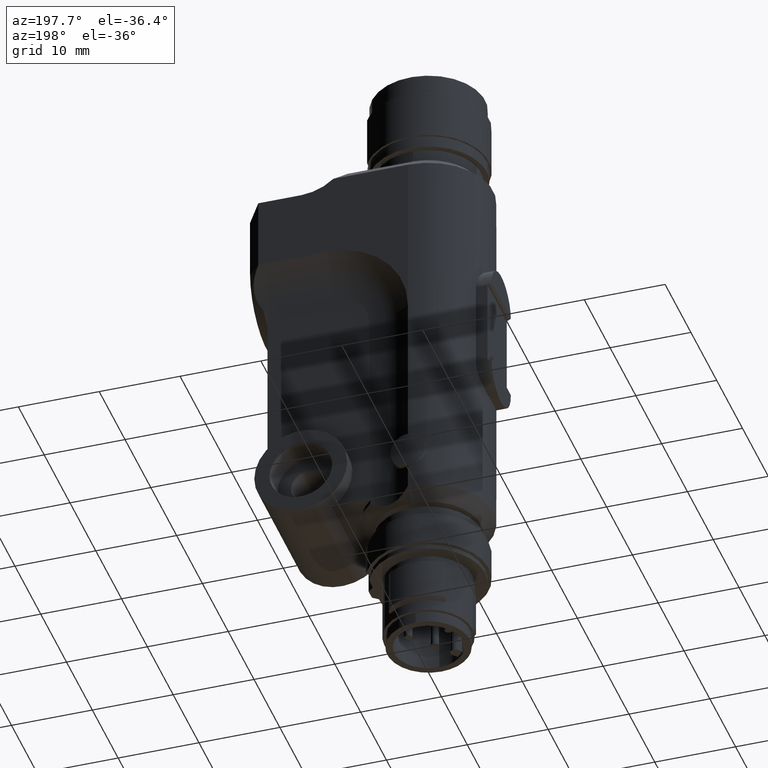
[diagram: clean part render]
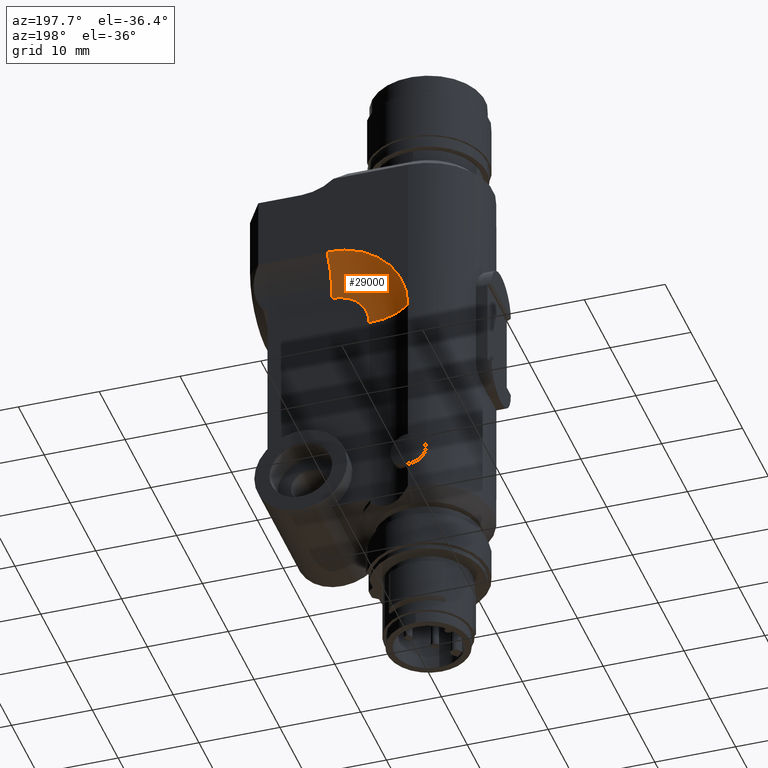
[diagram: same view with one face highlighted and labeled with its STEP entity id]
A machine part, auxiliary view. The second image highlights one B-rep face of the part: STEP entity #29000.
In plain terms, the highlighted toroidal blend (fillet) surface has major radius 4.7085 mm and minor (blend) radius 8 mm.
Its self-contained STEP definition (entity closure, byte-faithful):
#9360=CARTESIAN_POINT('',(-8.,4.56777472988637E-15,28.0000000000002));
#9370=VERTEX_POINT('',#9360);
#15000=CARTESIAN_POINT('',(-6.001,5.41798977562688,28.));
#15010=VERTEX_POINT('',#15000);
#15040=CARTESIAN_POINT('',(-14.,5.2915026221292,28.));
#15050=DIRECTION('',(2.52970265222012E-16,6.72936758894445E-17,1.));
#15060=DIRECTION('',(-4.76014766725616E-31,-1.,6.72936758894445E-17));
#15070=AXIS2_PLACEMENT_3D('',#15040,#15050,#15060);
#15080=CIRCLE('',#15070,8.);
#15090=EDGE_CURVE('',#9370,#15010,#15080,.T.);
#19730=CARTESIAN_POINT('',(-7.99999999999999,10.,38.));
#19740=VERTEX_POINT('',#19730);
#19940=CARTESIAN_POINT('',(-7.99999999999999,10.,28.));
#19950=DIRECTION('',(1.,-4.93038065763133E-31,-2.52970265222012E-16));
#19960=DIRECTION('',(-7.62657342238343E-31,-1.,-1.06581410364015E-15));
#19970=AXIS2_PLACEMENT_3D('',#19940,#19950,#19960);
#19980=CIRCLE('',#19970,9.99999999999999);
#19990=EDGE_CURVE('',#19740,#9370,#19980,.T.);
#24590=CARTESIAN_POINT('',(-6.001,10.,28.));
#24600=DIRECTION('',(1.,-4.93038065763133E-31,-2.52970265222012E-16));
#24610=DIRECTION('',(-6.8918143462851E-31,-1.,-7.75361359933893E-16));
#24620=AXIS2_PLACEMENT_3D('',#24590,#24600,#24610);
#24630=CIRCLE('',#24620,4.58201022437255);
#24640=CARTESIAN_POINT('',(-6.001,9.99979126227064,32.5820102196179));
#24650=VERTEX_POINT('',#24640);
#24660=EDGE_CURVE('',#24650,#15010,#24630,.T.);
#28530=CARTESIAN_POINT('',(-14.,10.,28.));
#28540=DIRECTION('',(1.,-4.93038065763133E-31,-2.52970265222012E-16));
#28550=DIRECTION('',(-7.13845243878985E-31,-1.,-8.38662567217461E-16));
#28560=AXIS2_PLACEMENT_3D('',#28530,#28540,#28550);
#28570=DEGENERATE_TOROIDAL_SURFACE('',#28560,4.70849737787081,8.,.T.);
#28580=ORIENTED_EDGE('',*,*,#19990,.F.);
#28590=ORIENTED_EDGE('',*,*,#15090,.F.);
#28600=ORIENTED_EDGE('',*,*,#24660,.T.);
#28610=CARTESIAN_POINT('',(-6.00099999996241,9.9997912622702,
32.5820102243724));
#28620=CARTESIAN_POINT('',(-5.99905382179248,9.99982992538619,
32.7050857996448));
#28630=CARTESIAN_POINT('',(-5.99994867757186,9.99987284943423,
32.8282062892243));
#28640=CARTESIAN_POINT('',(-6.00741855101626,9.99994155915745,
33.0742748596516));
#28650=CARTESIAN_POINT('',(-6.01399356802559,9.99998014137582,
33.1972229188203));
#28660=CARTESIAN_POINT('',(-6.03280975903188,10.000014495122,
33.4426847178797));
#28670=CARTESIAN_POINT('',(-6.0450509315676,10.0000034712061,
33.5651984371372));
#28680=CARTESIAN_POINT('',(-6.0751733568211,10.0000033957913,
33.8095305571864));
#28690=CARTESIAN_POINT('',(-6.09305460736925,9.99998821965409,
33.931348940518));
#28700=CARTESIAN_POINT('',(-6.13441909698242,10.0000059645154,
34.1740308793612));
#28710=CARTESIAN_POINT('',(-6.15790233300401,10.0000054802593,
34.2948944174781));
#28720=CARTESIAN_POINT('',(-6.21042076869601,10.0000075845503,
34.5354091943637));
#28730=CARTESIAN_POINT('',(-6.23945596441887,10.0000029102912,
34.6550604150764));
#28740=CARTESIAN_POINT('',(-6.30301646715335,10.0000038951417,
34.8928956659851));
#28750=CARTESIAN_POINT('',(-6.33754176935453,10.0000002985715,
35.0110796781686));
#28760=CARTESIAN_POINT('',(-6.41200893710365,10.0000001618834,
35.2457287460018));
#28770=CARTESIAN_POINT('',(-6.45195079703032,9.99999854366632,
35.3621937839335));
#28780=CARTESIAN_POINT('',(-6.53716599385156,10.000007441929,
35.5931568002295));
#28790=CARTESIAN_POINT('',(-6.58243932444605,10.0000061607539,
35.7076547613401));
#28800=CARTESIAN_POINT('',(-6.6782210180146,10.0000060464087,
35.9344397092382));
#28810=CARTESIAN_POINT('',(-6.72872937375276,10.0000025770729,
36.0467266788972));
#28820=CARTESIAN_POINT('',(-6.834873521229,10.0000027226943,
36.2688504403606));
#28830=CARTESIAN_POINT('',(-6.89050930493124,10.0000032036122,
36.3786872153445));
#28840=CARTESIAN_POINT('',(-7.00678978897772,10.0000036088901,
36.595676603327));
#28850=CARTESIAN_POINT('',(-7.06743448052477,10.0000039906968,
36.702829199909));
#28860=CARTESIAN_POINT('',(-7.19360359052133,10.0000037398743,
36.9142219650741));
#28870=CARTESIAN_POINT('',(-7.2591279994261,10.0000031322804,
37.0184621176629));
#28880=CARTESIAN_POINT('',(-7.3949169591605,10.0000022509402,
37.2238079330803));
#28890=CARTESIAN_POINT('',(-7.46518149971624,10.0000015447691,
37.3249135803728));
#28900=CARTESIAN_POINT('',(-7.61030103993298,10.0000008996389,
37.5237750008218));
#28910=CARTESIAN_POINT('',(-7.68515602861442,10.0000007259439,
37.6215307589328));
#28920=CARTESIAN_POINT('',(-7.83929700327201,10.0000003183979,
37.8134841528273));
#28930=CARTESIAN_POINT('',(-7.91858297758679,10.0000001741188,
37.9076817740888));
#28940=CARTESIAN_POINT('',(-8.,10.,38.));
#28950=B_SPLINE_CURVE_WITH_KNOTS('',3,(#28610,#28620,#28630,#28640,
#28650,#28660,#28670,#28680,#28690,#28700,#28710,#28720,#28730,#28740,
#28750,#28760,#28770,#28780,#28790,#28800,#28810,#28820,#28830,#28840,
#28850,#28860,#28870,#28880,#28890,#28900,#28910,#28920,#28930,#28940),
.UNSPECIFIED.,.F.,.F.,(4,2,2,2,2,2,2,2,2,2,2,2,2,2,2,2,4),(0.,
0.360937441842676,0.721874883685351,1.08281232552803,1.4437497673707,
1.80468720921338,2.16562465105605,2.52656209289873,2.88749953474141,
3.24843697658408,3.60937441842676,3.97031186026943,4.33124930211211,
4.69218674395479,5.05312418579746,5.41406162764014,5.77499906948281),
.UNSPECIFIED.);
#28960=EDGE_CURVE('',#24650,#19740,#28950,.T.);
#28970=ORIENTED_EDGE('',*,*,#28960,.F.);
#28980=EDGE_LOOP('',(#28970,#28600,#28590,#28580));
#28990=FACE_OUTER_BOUND('',#28980,.T.);
#29000=ADVANCED_FACE('',(#28990),#28570,.F.);